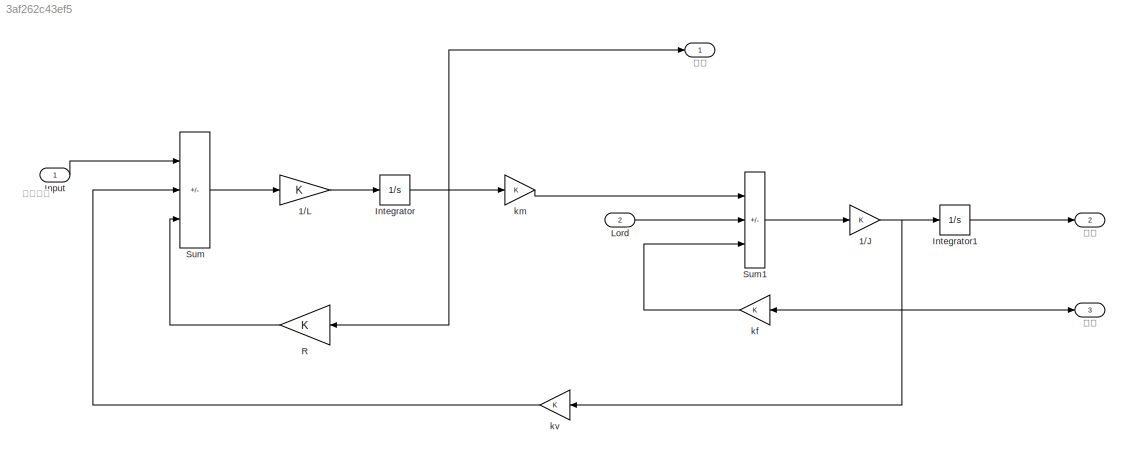
MODEL slx_3af262c43ef5
KIND model
CONFIG AbsTol = auto
CONFIG EnableMultiTasking = off
CONFIG FixedStep = auto
CONFIG MaxStep = auto
CONFIG MinStep = auto
CONFIG RelTol = 1e-3
CONFIG SampleTimeConstraint = Unconstrained
CONFIG SolverName = VariableStepAuto
CONFIG StartTime = 0.0
CONFIG StopTime = 10.0
BLOCK [Gain] 1//J
BLOCK [Gain] 1//L
BLOCK [Inport] Input
  IconDisplay = Port number and signal name
BLOCK [Integrator] Integrator
BLOCK [Integrator] Integrator1
BLOCK [Inport] Lord
  Port = 2
BLOCK [Gain] R
  NameLocation = top
BLOCK [Sum] Sum
  IconShape = rectangular
  Inputs = |+--
BLOCK [Sum] Sum1
  IconShape = rectangular
  Inputs = +--
BLOCK [Gain] kf
  NameLocation = top
BLOCK [Gain] km
BLOCK [Gain] kv
  NameLocation = top
BLOCK [Outport] 电流
BLOCK [Outport] 角度
  Port = 2
BLOCK [Outport] 速度
  Port = 3
ANNOTATION (root): 电机电压
NET 1//J:1 -> Integrator1:1, kf:1, kv:1, 速度:1
LINE 1//L:1 -> Integrator:1
LINE Input:1 -> Sum:1
LINE Integrator1:1 -> 角度:1
NET Integrator:1 -> R:1, km:1, 电流:1
LINE Lord:1 -> Sum1:2
LINE R:1 -> Sum:3
LINE Sum1:1 -> 1//J:1
LINE Sum:1 -> 1//L:1
LINE kf:1 -> Sum1:3
LINE km:1 -> Sum1:1
LINE kv:1 -> Sum:2
note: NET lines group one-source signal fan-out (src -> all destinations, sorted); 1:1 wires keep LINE
